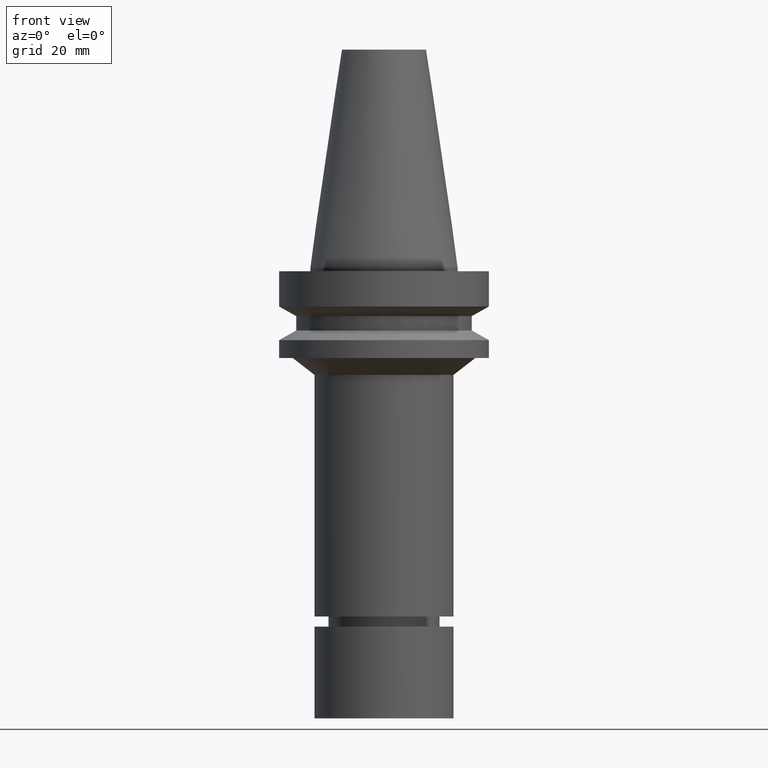
[diagram: clean part render]
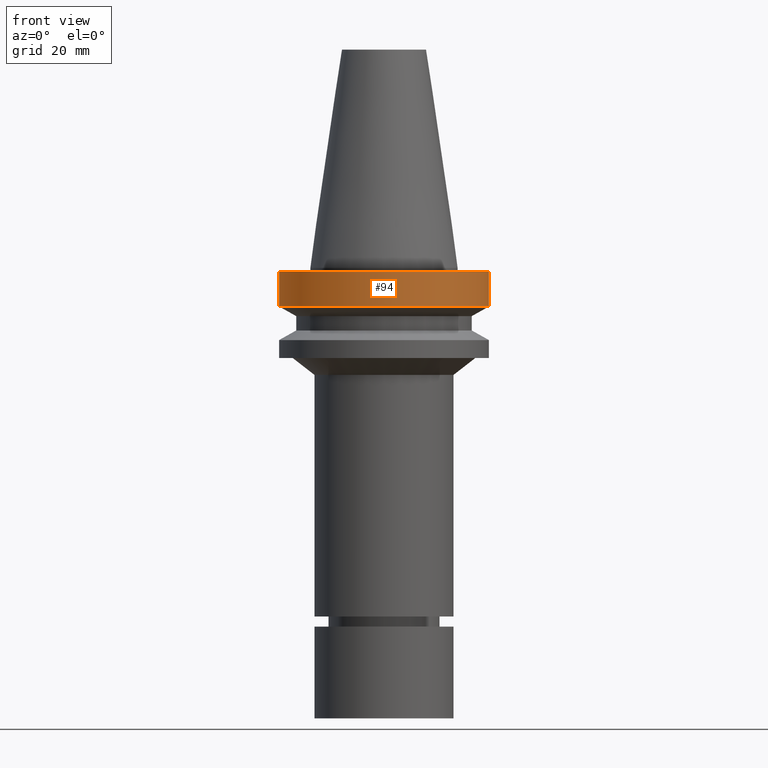
[diagram: same view with one face highlighted and labeled with its STEP entity id]
A machine part, front view. The second image highlights one B-rep face of the part: STEP entity #94.
In plain terms, the highlighted cylindrical surface (bore or boss wall) has radius 31.5 mm, axis along (0, -0, -1).
Its self-contained STEP definition (entity closure, byte-faithful):
#94=ADVANCED_FACE('Unnamed[1]',(#229,#230),#231,.T.);
#99=EDGE_CURVE('Unnamed[1]',#238,#238,#239,.T.);
#174=EDGE_CURVE('Unnamed[1]',#353,#353,#354,.T.);
#229=FACE_BOUND('',#411,.T.);
#230=FACE_BOUND('',#412,.T.);
#231=CYLINDRICAL_SURFACE('',#413,31.5);
#238=VERTEX_POINT('',#422);
#239=CIRCLE('',#423,31.5000000000003);
#353=VERTEX_POINT('',#565);
#354=CIRCLE('',#566,31.4999999999996);
#411=EDGE_LOOP('',(#609));
#412=EDGE_LOOP('',(#610));
#413=AXIS2_PLACEMENT_3D('',#611,#612,#613);
#422=CARTESIAN_POINT('',(7.08182973902924E-016,31.5000000000004,-11.5655056526664));
#423=AXIS2_PLACEMENT_3D('',#620,#621,#622);
#565=CARTESIAN_POINT('',(6.12323399573568E-017,31.4999999999997,-0.999999999999825));
#566=AXIS2_PLACEMENT_3D('',#749,#750,#751);
#609=ORIENTED_EDGE('',*,*,#99,.F.);
#610=ORIENTED_EDGE('',*,*,#174,.T.);
#611=CARTESIAN_POINT('',(3.84707656930141E-016,7.03690137665199E-014,-6.28275282633309));
#612=DIRECTION('',(6.12323399573676E-017,-9.35480732737835E-017,-1.0));
#613=DIRECTION('',(9.01014694288524E-034,1.0,-9.35480732737835E-017));
#620=CARTESIAN_POINT('',(7.08182973902924E-016,6.98748224180346E-014,-11.5655056526664));
#621=DIRECTION('',(6.12323399573677E-017,-9.35480732737825E-017,-1.0));
#622=DIRECTION('',(9.01014694294208E-034,1.0,-9.35480732737825E-017));
#749=CARTESIAN_POINT('',(6.12323399573572E-017,7.08632051150053E-014,-0.999999999999829));
#750=DIRECTION('',(6.12323399573677E-017,-9.35480732737845E-017,-1.0));
#751=DIRECTION('',(9.01014694288534E-034,1.0,-9.35480732737845E-017));